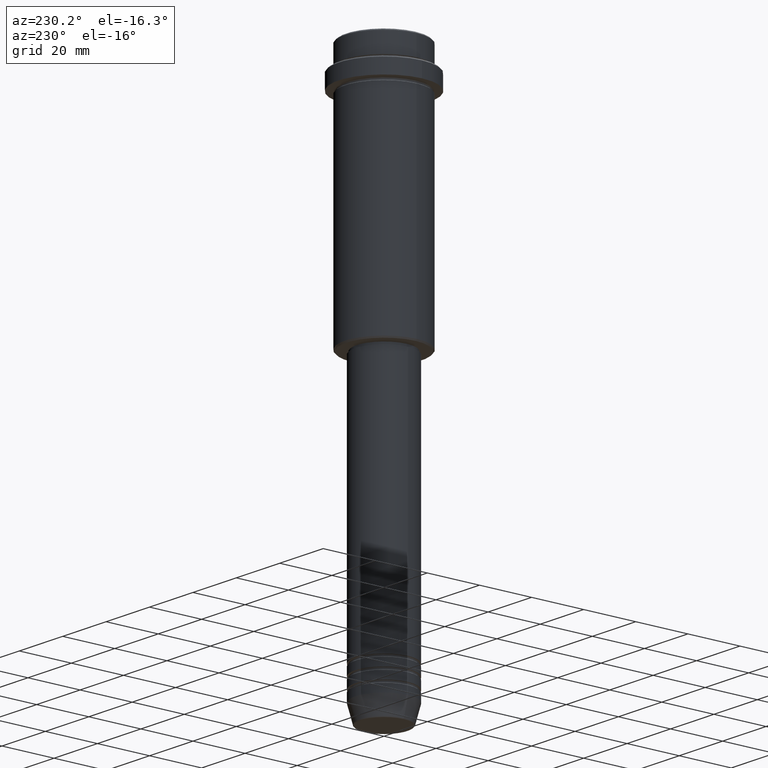
[diagram: clean part render]
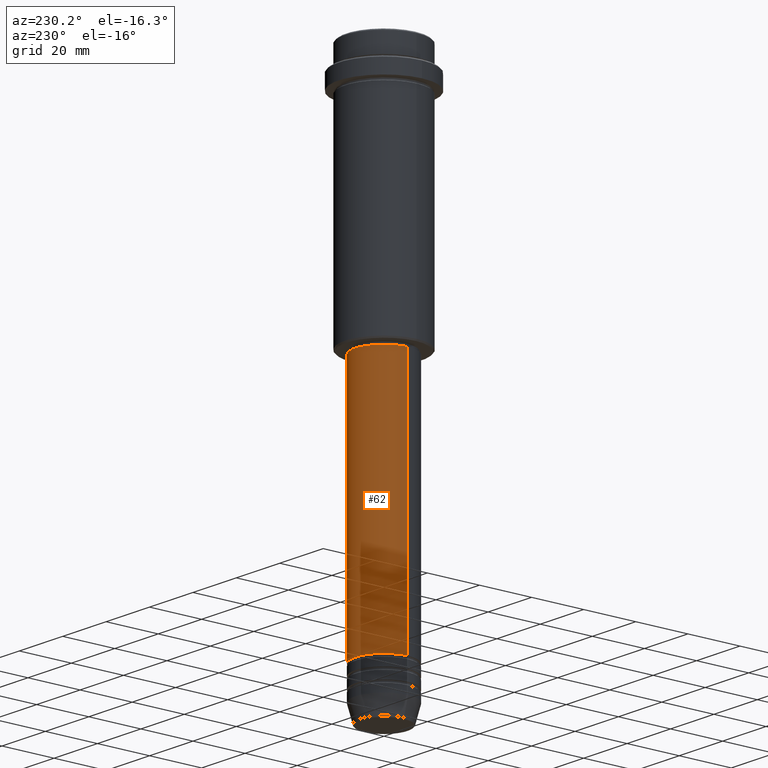
[diagram: same view with one face highlighted and labeled with its STEP entity id]
A machine part, auxiliary view. The second image highlights one B-rep face of the part: STEP entity #62.
In plain terms, the highlighted cylindrical surface (partial cylindrical patch) has radius 11 mm, axis along (-0, -0, 1).
Its self-contained STEP definition (entity closure, byte-faithful):
#61 = ORIENTED_EDGE ( 'NONE', *, *, #499, .F. ) ;
#62 = ADVANCED_FACE ( 'NONE', ( #727 ), #619, .T. ) ;
#78 = CARTESIAN_POINT ( 'NONE',  ( 0.000000000000000000, 0.000000000000000000, -96.00000000000000000 ) ) ;
#189 = VERTEX_POINT ( 'NONE', #737 ) ;
#190 = AXIS2_PLACEMENT_3D ( 'NONE', #78, #753, #1165 ) ;
#199 = CARTESIAN_POINT ( 'NONE',  ( 11.00000000000000000, 0.000000000000000000, -190.9999999999999147 ) ) ;
#213 = CIRCLE ( 'NONE', #190, 10.99999999999999822 ) ;
#298 = DIRECTION ( 'NONE',  ( -0.000000000000000000, -0.000000000000000000, 1.000000000000000000 ) ) ;
#323 = EDGE_CURVE ( 'NONE', #415, #189, #573, .T. ) ;
#364 = EDGE_LOOP ( 'NONE', ( #962, #1229, #1046, #61 ) ) ;
#370 = VERTEX_POINT ( 'NONE', #715 ) ;
#392 = DIRECTION ( 'NONE',  ( 1.000000000000000000, 0.000000000000000000, 0.000000000000000000 ) ) ;
#415 = VERTEX_POINT ( 'NONE', #1358 ) ;
#419 = LINE ( 'NONE', #1265, #696 ) ;
#424 = VECTOR ( 'NONE', #1313, 1000.000000000000000 ) ;
#450 = CIRCLE ( 'NONE', #1394, 11.00000000000000000 ) ;
#499 = EDGE_CURVE ( 'NONE', #953, #370, #419, .T. ) ;
#573 = LINE ( 'NONE', #998, #424 ) ;
#619 = CYLINDRICAL_SURFACE ( 'NONE', #1334, 11.00000000000000000 ) ;
#659 = DIRECTION ( 'NONE',  ( -0.000000000000000000, -0.000000000000000000, 1.000000000000000000 ) ) ;
#696 = VECTOR ( 'NONE', #298, 1000.000000000000000 ) ;
#715 = CARTESIAN_POINT ( 'NONE',  ( 10.99999999999999822, 0.000000000000000000, -96.00000000000000000 ) ) ;
#727 = FACE_OUTER_BOUND ( 'NONE', #364, .T. ) ;
#737 = CARTESIAN_POINT ( 'NONE',  ( -10.99999999999999822, 1.347111479062088207E-15, -96.00000000000000000 ) ) ;
#753 = DIRECTION ( 'NONE',  ( -0.000000000000000000, -0.000000000000000000, 1.000000000000000000 ) ) ;
#873 = DIRECTION ( 'NONE',  ( 1.000000000000000000, 0.000000000000000000, 0.000000000000000000 ) ) ;
#940 = EDGE_CURVE ( 'NONE', #370, #189, #213, .T. ) ;
#953 = VERTEX_POINT ( 'NONE', #199 ) ;
#962 = ORIENTED_EDGE ( 'NONE', *, *, #1191, .T. ) ;
#998 = CARTESIAN_POINT ( 'NONE',  ( -11.00000000000000000, 1.347111479062088405E-15, 0.000000000000000000 ) ) ;
#1046 = ORIENTED_EDGE ( 'NONE', *, *, #940, .F. ) ;
#1165 = DIRECTION ( 'NONE',  ( 1.000000000000000000, 0.000000000000000000, 0.000000000000000000 ) ) ;
#1191 = EDGE_CURVE ( 'NONE', #953, #415, #450, .T. ) ;
#1229 = ORIENTED_EDGE ( 'NONE', *, *, #323, .T. ) ;
#1234 = CARTESIAN_POINT ( 'NONE',  ( 0.000000000000000000, 0.000000000000000000, 0.000000000000000000 ) ) ;
#1265 = CARTESIAN_POINT ( 'NONE',  ( 11.00000000000000000, 0.000000000000000000, 0.000000000000000000 ) ) ;
#1313 = DIRECTION ( 'NONE',  ( -0.000000000000000000, -0.000000000000000000, 1.000000000000000000 ) ) ;
#1334 = AXIS2_PLACEMENT_3D ( 'NONE', #1234, #1376, #392 ) ;
#1358 = CARTESIAN_POINT ( 'NONE',  ( -11.00000000000000000, 1.347111479062088405E-15, -190.9999999999999147 ) ) ;
#1376 = DIRECTION ( 'NONE',  ( -0.000000000000000000, -0.000000000000000000, 1.000000000000000000 ) ) ;
#1394 = AXIS2_PLACEMENT_3D ( 'NONE', #1400, #659, #873 ) ;
#1400 = CARTESIAN_POINT ( 'NONE',  ( 0.000000000000000000, 0.000000000000000000, -190.9999999999999147 ) ) ;